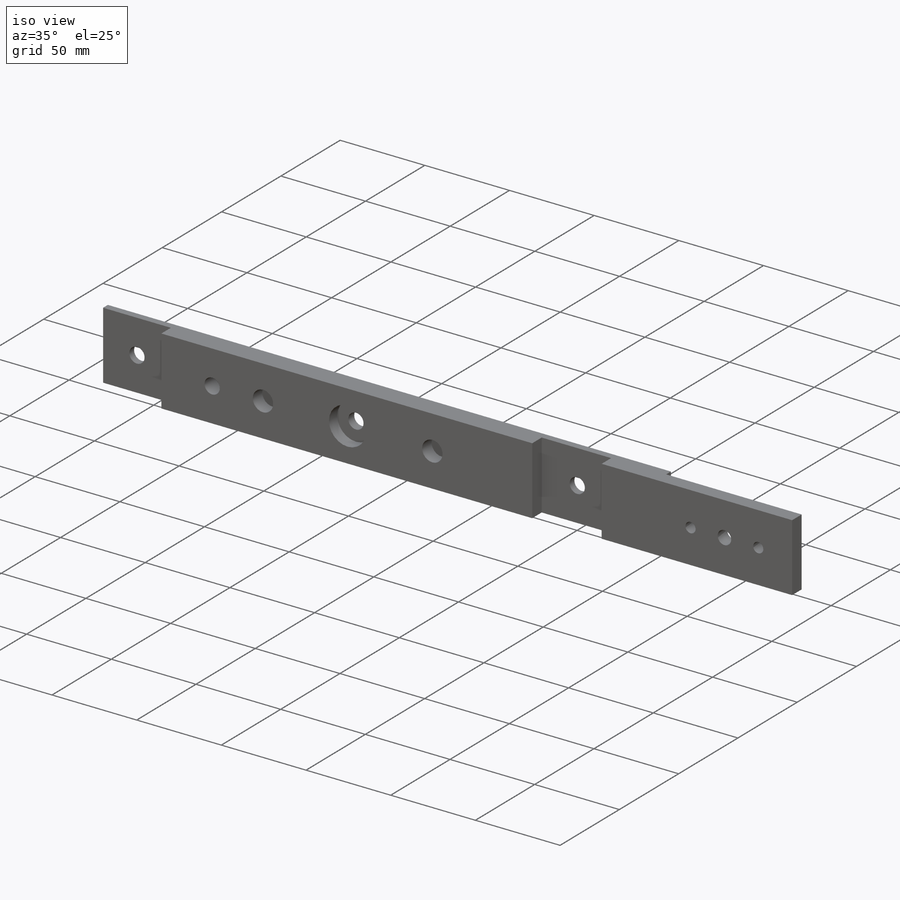
[diagram: iso view]
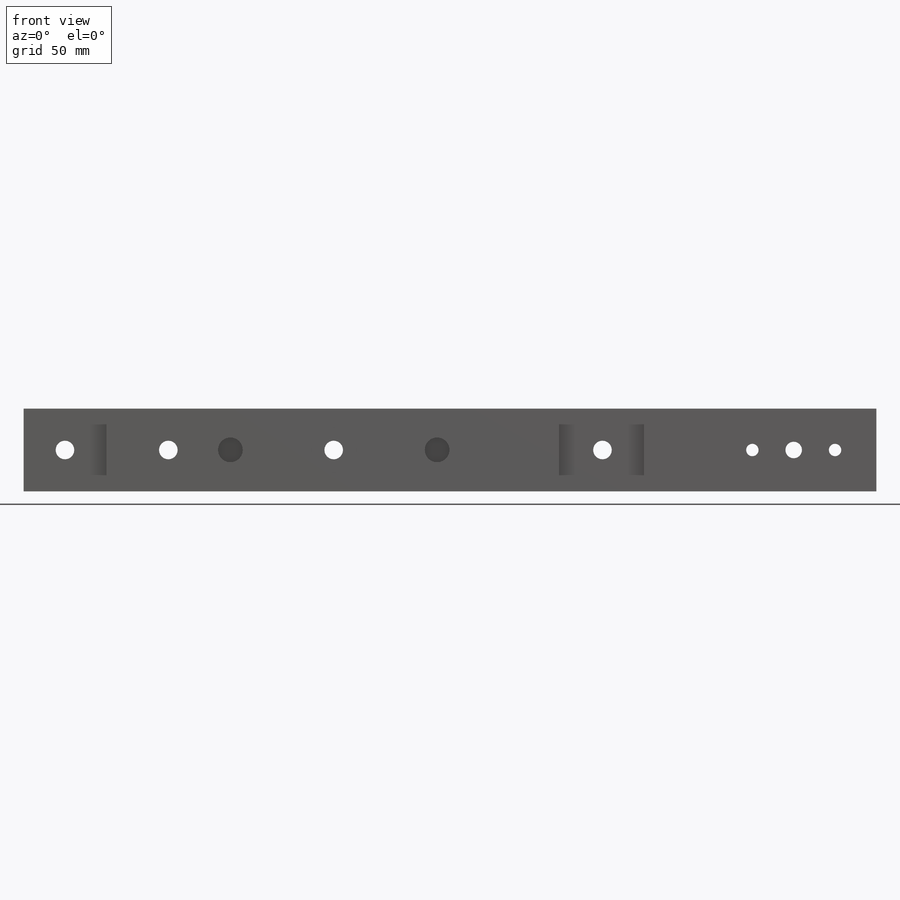
[diagram: front view]
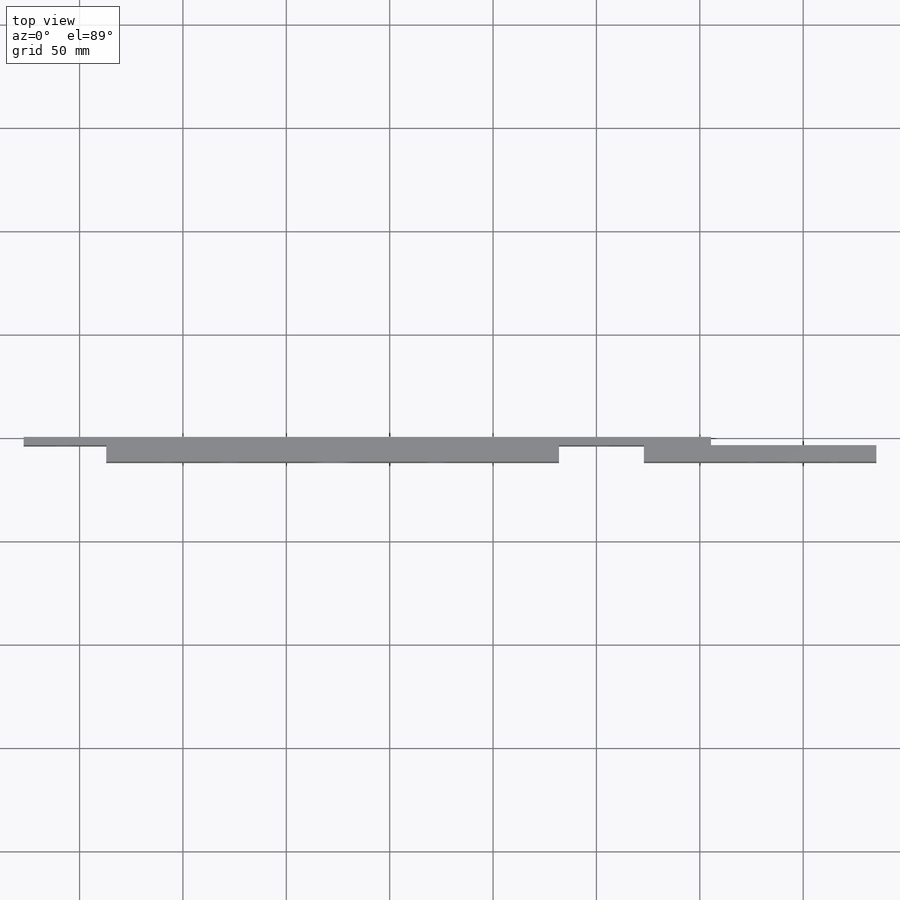
[diagram: top view]
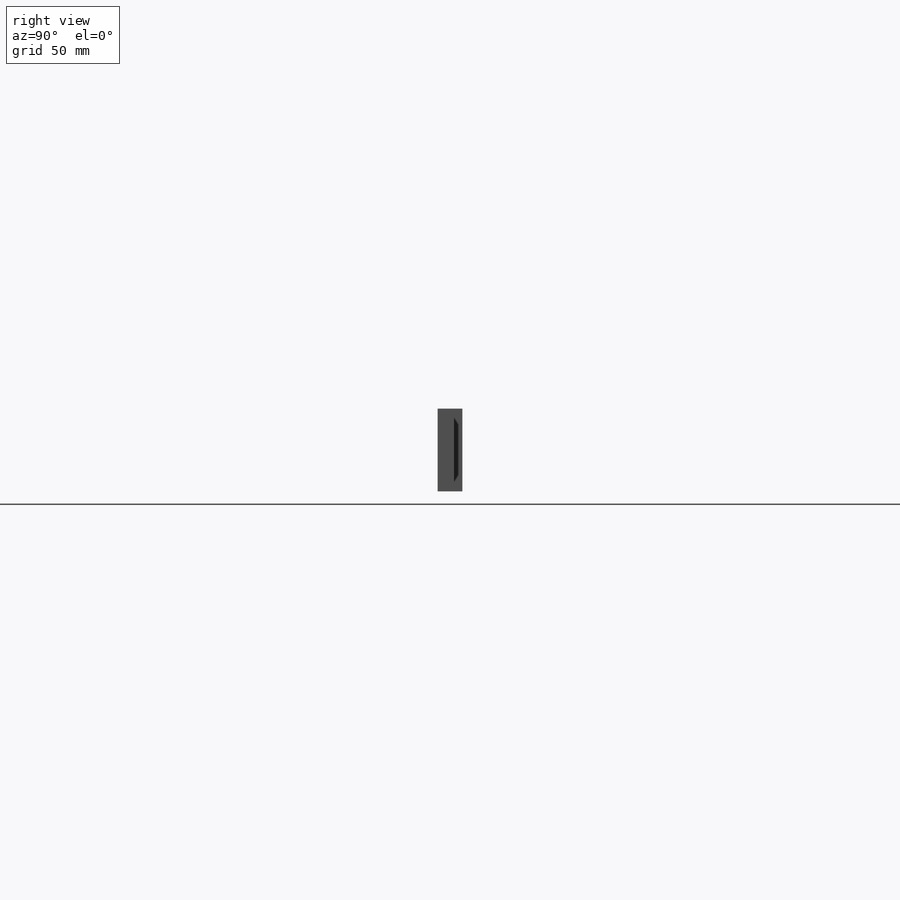
[diagram: right view]
SOLIDWORKS PART (.sldprt)
format: sldprt  version: not decoded by parser v0  size: 279,552 bytes
history: native  units: mm
features: sketch x9, cut_extrude x8, plane x3, material x1, extrude x1 (+10 scaffold rows collapsed)
feature tree (32):
  scaffold x10  (default folders/planes/origin — collapsed)
  material  "Matériau <non spécifié>"
  plane  "Plan de face"
  plane  "Plan de dessus"
  plane  "Plan de droite"
  sketch  "Esquisse1"  dims[D1=412.5mm D2=40.0mm]
  extrude  "Boss.-Extru.1"  Depth=12mm
  sketch  "Esquisse2"  dims[c1.D1=~15.811218mm c1.D2=9.0mm c1.D4=9.0mm c1.D6=22.0mm c1.D8=9.0mm c1.D10=9.0mm c1.D11=9.0mm c1.D12=9.0mm c1.D14=9.0mm c2.D1=20.0mm c2.D3=70.0mm c2.D5=150.0mm c2.D7=132.5mm c2.D9=20.0mm c2.D12=10.0mm c2.D13=20.0mm c2.D14=20.0mm]
  cut_extrude  "Enlèv. mat.-Extru.1"  [1 undecoded]
  sketch  "Esquisse3"  dims[c1.D1=22.0mm c1.D3=22.0mm c1.D2=150.0mm c2.D3=20.0mm]
  cut_extrude  "Enlèv. mat.-Extru.2"  Depth=7mm
  sketch  "Esquisse4"  dims[c1.D1=40.0mm c1.D2=40.0mm c1.D3=10.0mm c1.D4=112.5mm c1.D5=50.0mm c1.D6=25.0mm c2.D3=41.0mm c2.D2=112.5mm]
  cut_extrude  "Enlèv. mat.-Extru.3"  Depth=8mm
  sketch  "Esquisse5"  dims[c1.D1=12.0mm c1.D2=12.0mm c1.D4=12.0mm c1.D3=60.0mm c2.D4=59.0mm c2.D5=20.0mm]
  cut_extrude  "Enlèv. mat.-Extru.5"  Depth=8mm
  sketch  "Esquisse6"  dims[D1=80.0mm]
  cut_extrude  "Enlèv. mat.-Extru.6"  Depth=4mm
  sketch  "Esquisse7"  dims[c1.D1=6.0mm c1.D2=6.0mm c1.D4=6.0mm c1.D3=20.0mm c2.D4=40.0mm]
  cut_extrude  "Enlèv. mat.-Extru.7"  [1 undecoded]
  sketch  "Esquisse8"  dims[D1=8.0mm D2=40.0mm]
  cut_extrude  "Enlèv. mat.-Extru.8"  [1 undecoded]
  sketch  "Esquisse9"  dims[D1=9.0mm]
  cut_extrude  "Enlèv. mat.-Extru.9"  [1 undecoded]
decode coverage: 14 of 18 modeling features carry decoded parameters
note: ~ marks probable driven/reference dimensions
note: 4 parameter values undecoded
summary: no parameter record found for 4 features
note: suppression state not decoded; provenance and decode notes live in map.json
